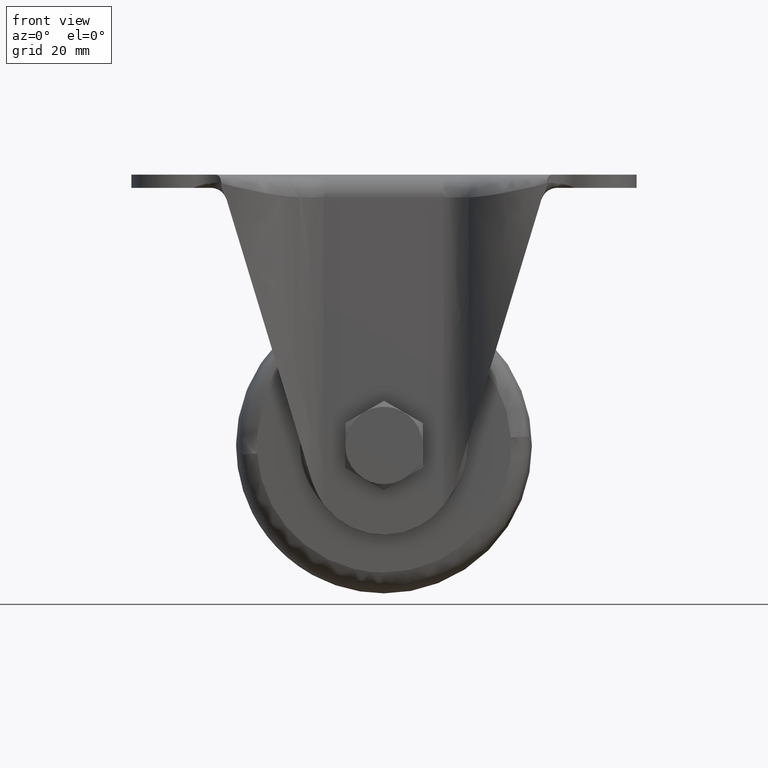
[diagram: clean part render]
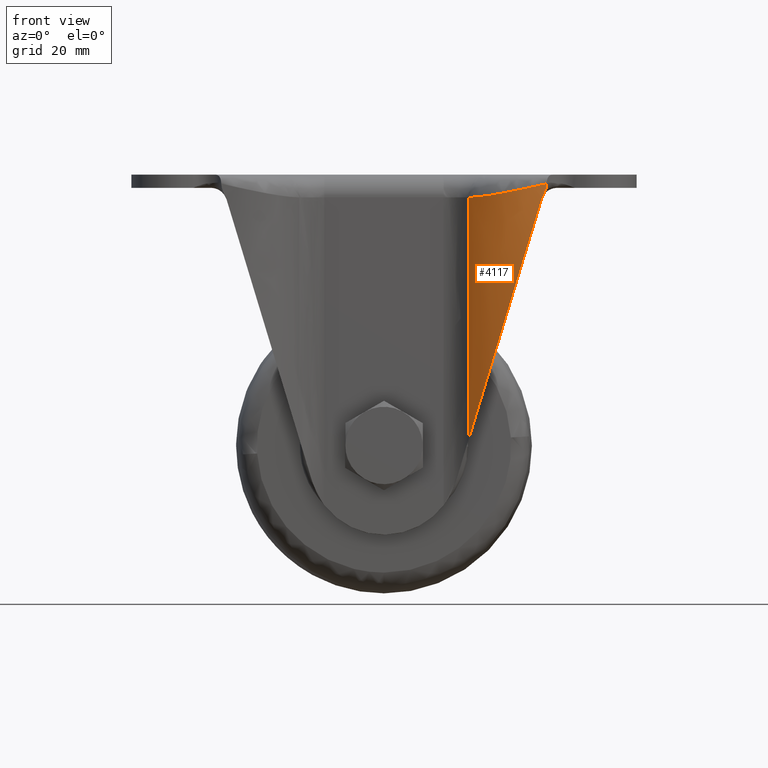
[diagram: same view with one face highlighted and labeled with its STEP entity id]
A machine part, front view. The second image highlights one B-rep face of the part: STEP entity #4117.
In plain terms, the highlighted face is a freeform B-spline surface patch.
Its self-contained STEP definition (entity closure, byte-faithful):
#3878=CARTESIAN_POINT('',(34.607577784185906,-35.485252405549247,-5.383569958113620));
#3879=VERTEX_POINT('',#3878);
#3885=CARTESIAN_POINT('',(18.622024761987252,-27.051020408163250,-58.056322656207499));
#3886=VERTEX_POINT('',#3885);
#3887=CARTESIAN_POINT('',(18.622024761987191,-27.051020408163250,-58.056322656207563));
#3888=CARTESIAN_POINT('',(24.166651087550203,-35.908159897948934,-39.786655610959954));
#3889=CARTESIAN_POINT('',(34.607577784185892,-35.485252405549247,-5.383569958113625));
#3897=(BOUNDED_CURVE()B_SPLINE_CURVE(2,(#3887,#3888,#3889),.UNSPECIFIED.,.F.,.U.)CURVE()GEOMETRIC_REPRESENTATION_ITEM()QUASI_UNIFORM_CURVE()RATIONAL_B_SPLINE_CURVE((1.0,0.864833274978381,1.0))REPRESENTATION_ITEM(''));
#3898=EDGE_CURVE('',#3886,#3879,#3897,.T.);
#4030=CARTESIAN_POINT('',(36.243146226503988,-35.344081187604303,-59.457712009791159));
#4031=CARTESIAN_POINT('',(36.243146226503988,-35.344081187604303,-0.564324425437775));
#4032=CARTESIAN_POINT('',(24.086332006541074,-36.954665907871885,-59.457712009791159));
#4033=CARTESIAN_POINT('',(24.086332006541074,-36.954665907871885,-0.564324425437775));
#4034=CARTESIAN_POINT('',(18.138248944830249,-26.230747640240388,-59.457712009791159));
#4035=CARTESIAN_POINT('',(18.138248944830249,-26.230747640240388,-0.564324425437775));
#4043=(BOUNDED_SURFACE()B_SPLINE_SURFACE(1,2,((#4030,#4032,#4034),(#4031,#4033,#4035)),.UNSPECIFIED.,.F.,.F.,.U.)B_SPLINE_SURFACE_WITH_KNOTS((2,2),(3,3),(0.0,58.893387584353391),(0.0,22.195274449171109),.UNSPECIFIED.)GEOMETRIC_REPRESENTATION_ITEM()RATIONAL_B_SPLINE_SURFACE(((1.0,0.823176207421518,0.992130762172564),(1.0,0.823176207421518,0.992130762172564)))REPRESENTATION_ITEM('')SURFACE());
#4044=CARTESIAN_POINT('',(34.902091871141252,-35.470906074142107,-4.691450661817290));
#4045=VERTEX_POINT('',#4044);
#4046=CARTESIAN_POINT('',(34.607577784185963,-35.485252405549247,-5.383569958113609));
#4047=CARTESIAN_POINT('',(34.681307985656602,-35.482265979581129,-5.140627304640772));
#4048=CARTESIAN_POINT('',(34.779809211396433,-35.477867076080088,-4.910074829429433));
#4049=CARTESIAN_POINT('',(34.902091871141273,-35.470906074142093,-4.691450661817245));
#4050=QUASI_UNIFORM_CURVE('',3,(#4046,#4047,#4048,#4049),.UNSPECIFIED.,.F.,.U.);
#4051=EDGE_CURVE('',#3879,#4045,#4050,.T.);
#4052=ORIENTED_EDGE('',*,*,#4051,.T.);
#4053=CARTESIAN_POINT('',(35.765037279534063,-35.400927324776312,-2.000748512861030));
#4054=VERTEX_POINT('',#4053);
#4055=CARTESIAN_POINT('',(34.902091871141252,-35.470906074142107,-4.691450661817290));
#4056=CARTESIAN_POINT('',(34.947731426590423,-35.468201270263968,-4.607849978763233));
#4057=CARTESIAN_POINT('',(35.038892037899707,-35.462798685322539,-4.440865675386942));
#4058=CARTESIAN_POINT('',(35.163715171823448,-35.454211009746693,-4.184458665656660));
#4059=CARTESIAN_POINT('',(35.279480577834740,-35.445548397406363,-3.924287387691622));
#4060=CARTESIAN_POINT('',(35.385392776478589,-35.436943701799983,-3.659891420259842));
#4061=CARTESIAN_POINT('',(35.494376377428750,-35.427481185605032,-3.355724275213819));
#4062=CARTESIAN_POINT('',(35.598593695429827,-35.417768907567442,-3.020007010334010));
#4063=CARTESIAN_POINT('',(35.685771174119978,-35.409145704499288,-2.660410888759488));
#4064=CARTESIAN_POINT('',(35.744932461975417,-35.403045182409009,-2.323480191232732));
#4065=CARTESIAN_POINT('',(35.758518709827442,-35.401613996145841,-2.105387559490850));
#4066=CARTESIAN_POINT('',(35.765037279534063,-35.400927324776312,-2.000748512861030));
#4067=B_SPLINE_CURVE_WITH_KNOTS('',3,(#4055,#4056,#4057,#4058,#4059,#4060,#4061,#4062,#4063,#4064,#4065,#4066),.UNSPECIFIED.,.F.,.U.,(4,1,1,1,1,1,1,1,1,4),(0.0,0.100289624971283,0.200318855658995,0.300223139836911,0.400138433835883,0.500200649488941,0.640447350620784,0.770083001013222,0.889687719452900,1.000000000000000),.UNSPECIFIED.);
#4068=EDGE_CURVE('',#4045,#4054,#4067,.T.);
#4069=ORIENTED_EDGE('',*,*,#4068,.T.);
#4070=CARTESIAN_POINT('',(18.622024761987252,-27.051020408163250,-5.0));
#4071=VERTEX_POINT('',#4070);
#4072=CARTESIAN_POINT('',(35.765037279534063,-35.400927324776312,-2.000748512861030));
#4073=CARTESIAN_POINT('',(35.564498447637902,-35.420095604335742,-2.045711525238400));
#4074=CARTESIAN_POINT('',(35.168141608524003,-35.457980928717070,-2.134579087160617));
#4075=CARTESIAN_POINT('',(34.578531405414353,-35.489330514328550,-2.265373584848565));
#4076=CARTESIAN_POINT('',(34.002403686043081,-35.502636547869997,-2.392311253900223));
#4077=CARTESIAN_POINT('',(33.440181653250598,-35.497487763452789,-2.515330687119727));
#4078=CARTESIAN_POINT('',(32.892453033960003,-35.475658390881861,-2.634447789938210));
#4079=CARTESIAN_POINT('',(32.359661424760880,-35.438336083006462,-2.749658513043903));
#4080=CARTESIAN_POINT('',(31.842191863774769,-35.386832565854853,-2.860963960015198));
#4081=CARTESIAN_POINT('',(31.340354696753781,-35.322396047326833,-2.968363913484009));
#4082=CARTESIAN_POINT('',(30.854395662101052,-35.246255739893947,-3.071858503921065));
#4083=CARTESIAN_POINT('',(30.384499186834571,-35.159607096205733,-3.171447781305093));
#4084=CARTESIAN_POINT('',(29.930793364130871,-35.063612766502850,-3.267131826793719));
#4085=CARTESIAN_POINT('',(29.493354407705020,-34.959399953830399,-3.358910725063440));
#4086=CARTESIAN_POINT('',(29.072211127104499,-34.848059102556583,-3.446784575662678));
#4087=CARTESIAN_POINT('',(28.667349264035991,-34.730642623871162,-3.530753484347400));
#4088=CARTESIAN_POINT('',(28.278715716366769,-34.608163961922322,-3.610817597036286));
#4089=CARTESIAN_POINT('',(27.906222620281941,-34.481596891604298,-3.686976992351622));
#4090=CARTESIAN_POINT('',(27.549751316797181,-34.351875056185051,-3.759232075019038));
#4091=CARTESIAN_POINT('',(27.209156079268670,-34.219891684803912,-3.827582204282239));
#4092=CARTESIAN_POINT('',(26.884268003844760,-34.086499585329342,-3.892030545567615));
#4093=CARTESIAN_POINT('',(26.574897625654220,-33.952510986286910,-3.952567047645380));
#4094=CARTESIAN_POINT('',(26.280841286352079,-33.818698631120270,-4.009228144329986));
#4095=CARTESIAN_POINT('',(25.722317919628800,-33.552607439796780,-4.114659053610092));
#4096=CARTESIAN_POINT('',(24.917258575400268,-33.126130061056223,-4.260736265557311));
#4097=CARTESIAN_POINT('',(23.897715476405409,-32.494684264383388,-4.434662380446762));
#4098=CARTESIAN_POINT('',(22.944128234884371,-31.813404029824220,-4.585361285600072));
#4099=CARTESIAN_POINT('',(22.057475030633359,-31.089560342506260,-4.712959983454923));
#4100=CARTESIAN_POINT('',(21.238125177139441,-30.330038217406958,-4.817379529603453));
#4101=CARTESIAN_POINT('',(20.485423359791650,-29.541712636640121,-4.898804992780524));
#4102=CARTESIAN_POINT('',(19.799820160462851,-28.730088750696769,-4.956595935483414));
#4103=CARTESIAN_POINT('',(19.175415791462829,-27.903990974437072,-4.993039206754859));
#4104=CARTESIAN_POINT('',(18.804805162764989,-27.332749409269240,-4.997700908559573));
#4105=CARTESIAN_POINT('',(18.622024761987220,-27.051020408163279,-5.000000000000004));
#4106=B_SPLINE_CURVE_WITH_KNOTS('',3,(#4072,#4073,#4074,#4075,#4076,#4077,#4078,#4079,#4080,#4081,#4082,#4083,#4084,#4085,#4086,#4087,#4088,#4089,#4090,#4091,#4092,#4093,#4094,#4095,#4096,#4097,#4098,#4099,#4100,#4101,#4102,#4103,#4104,#4105),.UNSPECIFIED.,.F.,.U.,(4,1,1,1,1,1,1,1,1,1,1,1,1,1,1,1,1,1,1,1,1,1,1,1,1,1,1,1,1,1,1,4),(0.0,0.030412181102286,0.060108438142482,0.089088815061688,0.117353359567303,0.144902123513628,0.171735163333255,0.197852540527375,0.223254322225144,0.247940581823874,0.271911399724704,0.295166864181125,0.317707072281945,0.339532131094903,0.360642159003584,0.381037287278088,0.400717661930189,0.419683445917074,0.437934821775133,0.455471994788408,0.472295196827148,0.488404691033625,0.503800777589362,0.564769776091461,0.624241318408274,0.682230007289954,0.738751597996298,0.793823108145707,0.847462938717177,0.899691007143360,0.950528893409319,1.0),.UNSPECIFIED.);
#4107=EDGE_CURVE('',#4054,#4071,#4106,.T.);
#4108=ORIENTED_EDGE('',*,*,#4107,.T.);
#4109=CARTESIAN_POINT('',(18.622024761987252,-27.051020408163250,-58.056322656207499));
#4110=CARTESIAN_POINT('',(18.622024761987252,-27.051020408163250,-5.0));
#4111=QUASI_UNIFORM_CURVE('',1,(#4109,#4110),.UNSPECIFIED.,.F.,.U.);
#4112=EDGE_CURVE('',#3886,#4071,#4111,.T.);
#4113=ORIENTED_EDGE('',*,*,#4112,.F.);
#4114=ORIENTED_EDGE('',*,*,#3898,.T.);
#4115=EDGE_LOOP('',(#4052,#4069,#4108,#4113,#4114));
#4116=FACE_OUTER_BOUND('',#4115,.T.);
#4117=ADVANCED_FACE('',(#4116),#4043,.T.);